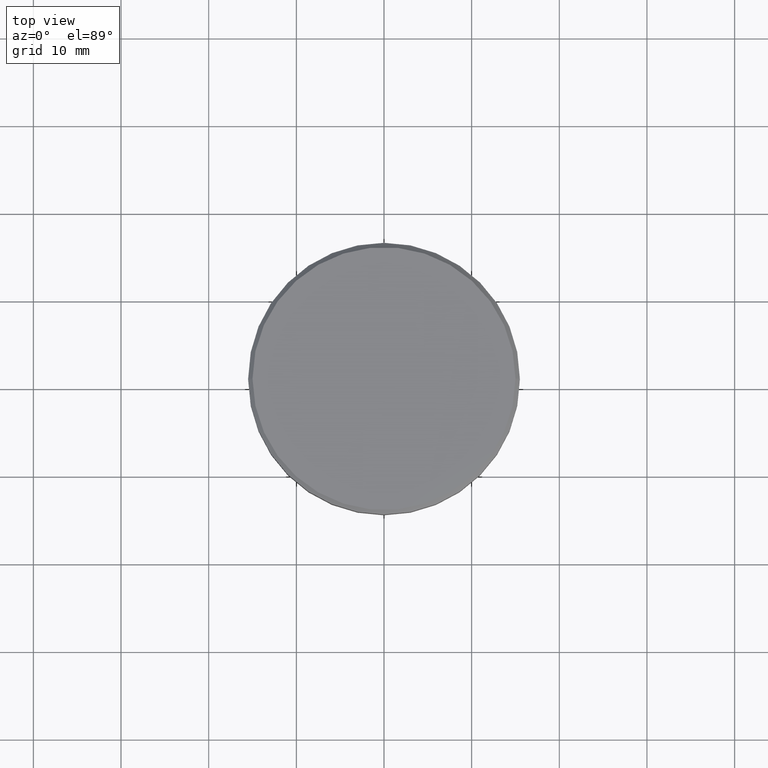
[diagram: clean part render]
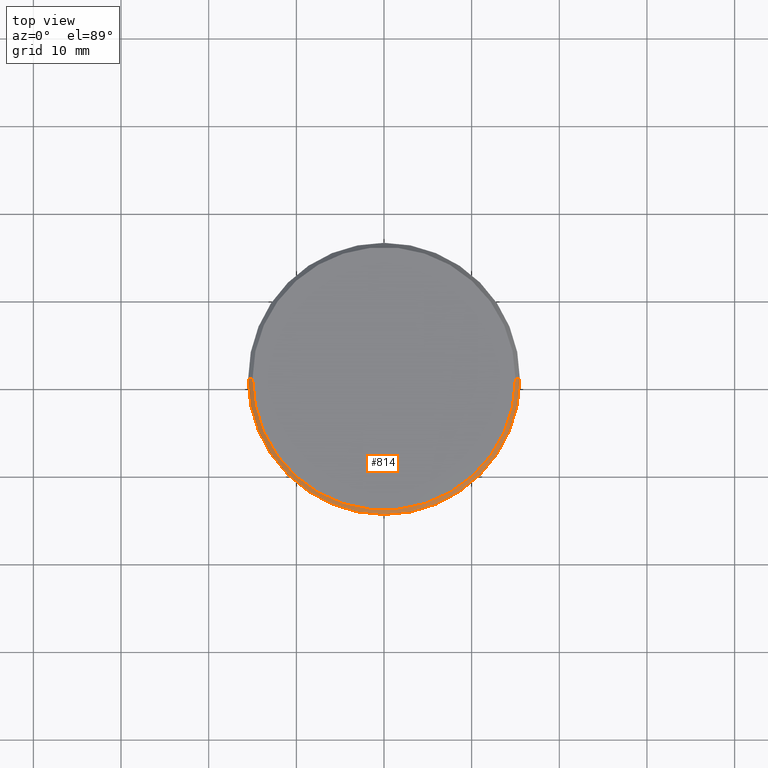
[diagram: same view with one face highlighted and labeled with its STEP entity id]
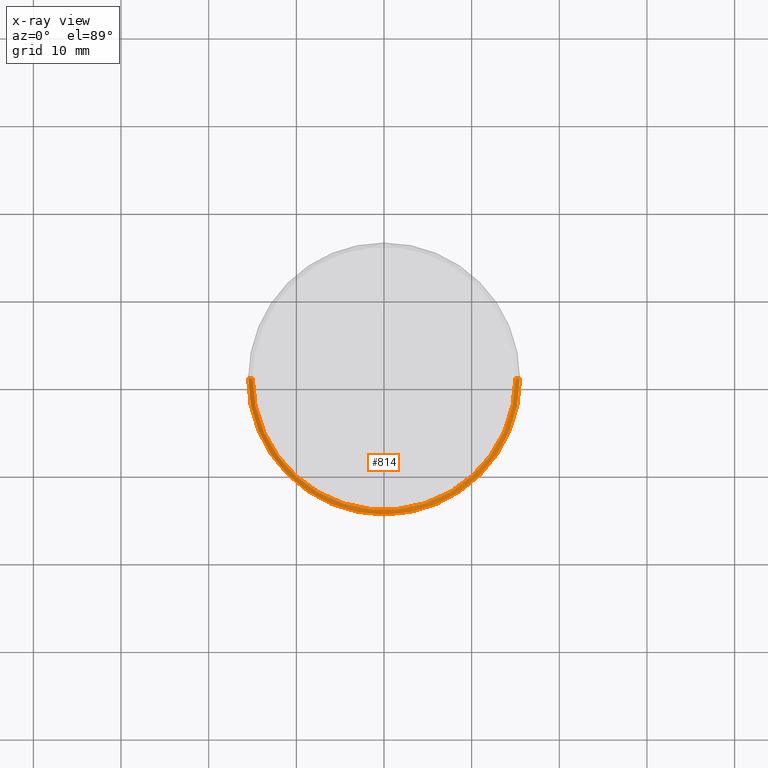
[diagram: x-ray of the same camera — body ghosted, the highlighted face saturated]
A machine part, top view. The second image highlights one B-rep face of the part: STEP entity #814.
The next image is the same camera in x-ray: the body ghosted, the highlighted face saturated — about 0% of this face is hidden behind the body in this view.
In plain terms, the highlighted conical surface has half-angle 45 deg.
Its self-contained STEP definition (entity closure, byte-faithful):
#33 = DIRECTION ( 'NONE',  ( -1.000000000000000000, 0.000000000000000000, 0.000000000000000000 ) ) ;
#35 = ORIENTED_EDGE ( 'NONE', *, *, #1147, .F. ) ;
#36 = AXIS2_PLACEMENT_3D ( 'NONE', #1061, #60, #33 ) ;
#49 = VERTEX_POINT ( 'NONE', #979 ) ;
#50 = CONICAL_SURFACE ( 'NONE', #36, 15.00000000000001421, 0.7853981633974430610 ) ;
#53 = CARTESIAN_POINT ( 'NONE',  ( -15.00000000000001421, 0.000000000000000000, 0.000000000000000000 ) ) ;
#60 = DIRECTION ( 'NONE',  ( 0.000000000000000000, 0.000000000000000000, -1.000000000000000000 ) ) ;
#94 = AXIS2_PLACEMENT_3D ( 'NONE', #665, #882, #887 ) ;
#190 = VECTOR ( 'NONE', #412, 999.9999999999998863 ) ;
#200 = CIRCLE ( 'NONE', #229, 15.50000000000000000 ) ;
#229 = AXIS2_PLACEMENT_3D ( 'NONE', #1013, #656, #1019 ) ;
#273 = VERTEX_POINT ( 'NONE', #833 ) ;
#374 = VECTOR ( 'NONE', #1118, 999.9999999999998863 ) ;
#376 = LINE ( 'NONE', #752, #374 ) ;
#400 = VERTEX_POINT ( 'NONE', #1140 ) ;
#412 = DIRECTION ( 'NONE',  ( -0.7071067811865439090, 0.000000000000000000, -0.7071067811865512365 ) ) ;
#500 = LINE ( 'NONE', #53, #190 ) ;
#595 = EDGE_CURVE ( 'NONE', #273, #913, #500, .T. ) ;
#656 = DIRECTION ( 'NONE',  ( 0.000000000000000000, 0.000000000000000000, -1.000000000000000000 ) ) ;
#665 = CARTESIAN_POINT ( 'NONE',  ( 0.000000000000000000, 0.000000000000000000, 0.000000000000000000 ) ) ;
#752 = CARTESIAN_POINT ( 'NONE',  ( 15.00000000000001421, 1.836970198721031561E-15, 0.000000000000000000 ) ) ;
#814 = ADVANCED_FACE ( 'NONE', ( #963 ), #50, .T. ) ;
#831 = ORIENTED_EDGE ( 'NONE', *, *, #595, .T. ) ;
#833 = CARTESIAN_POINT ( 'NONE',  ( -15.00000000000001421, 0.000000000000000000, 0.000000000000000000 ) ) ;
#843 = EDGE_LOOP ( 'NONE', ( #949, #877, #831, #35 ) ) ;
#845 = EDGE_CURVE ( 'NONE', #273, #49, #1180, .T. ) ;
#877 = ORIENTED_EDGE ( 'NONE', *, *, #845, .F. ) ;
#882 = DIRECTION ( 'NONE',  ( -0.000000000000000000, -0.000000000000000000, 1.000000000000000000 ) ) ;
#887 = DIRECTION ( 'NONE',  ( 1.000000000000000000, 0.000000000000000000, 0.000000000000000000 ) ) ;
#899 = CARTESIAN_POINT ( 'NONE',  ( -15.50000000000000000, 1.898202538678397557E-15, -0.4999999999999917843 ) ) ;
#913 = VERTEX_POINT ( 'NONE', #899 ) ;
#949 = ORIENTED_EDGE ( 'NONE', *, *, #1123, .F. ) ;
#963 = FACE_OUTER_BOUND ( 'NONE', #843, .T. ) ;
#979 = CARTESIAN_POINT ( 'NONE',  ( 15.00000000000001421, 1.867586368699714559E-15, 0.000000000000000000 ) ) ;
#1013 = CARTESIAN_POINT ( 'NONE',  ( 0.000000000000000000, 0.000000000000000000, -0.4999999999999917843 ) ) ;
#1019 = DIRECTION ( 'NONE',  ( 1.000000000000000000, 0.000000000000000000, 0.000000000000000000 ) ) ;
#1061 = CARTESIAN_POINT ( 'NONE',  ( 0.000000000000000000, 0.000000000000000000, 0.000000000000000000 ) ) ;
#1118 = DIRECTION ( 'NONE',  ( 0.7071067811865439090, 8.659560562354887252E-17, -0.7071067811865512365 ) ) ;
#1123 = EDGE_CURVE ( 'NONE', #49, #400, #376, .T. ) ;
#1140 = CARTESIAN_POINT ( 'NONE',  ( 15.50000000000000000, 0.000000000000000000, -0.4999999999999917843 ) ) ;
#1147 = EDGE_CURVE ( 'NONE', #400, #913, #200, .T. ) ;
#1180 = CIRCLE ( 'NONE', #94, 15.00000000000001421 ) ;